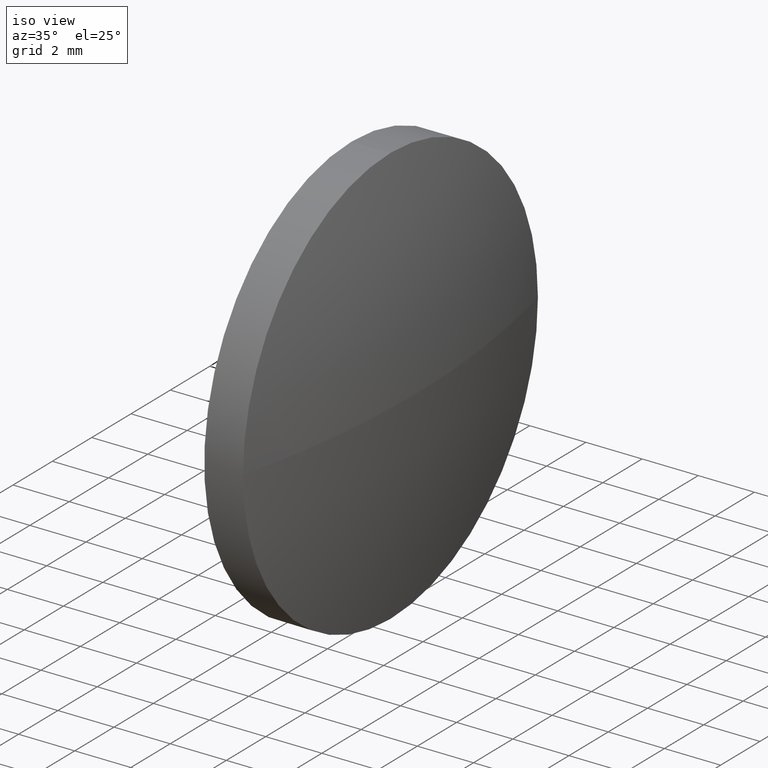
[diagram: clean part render]
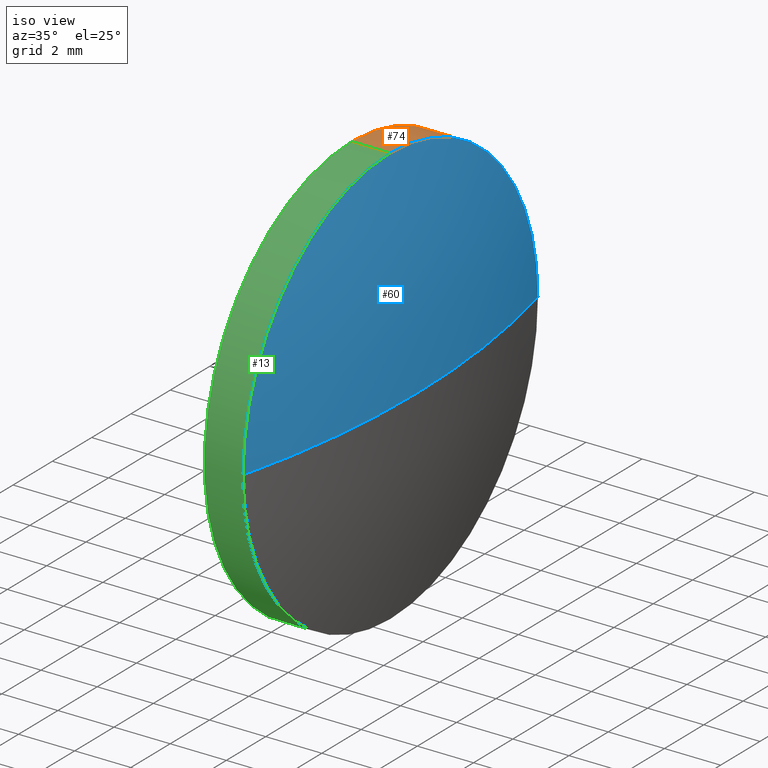
[diagram: same view with three faces highlighted in distinct colors, each labeled with its STEP entity id]
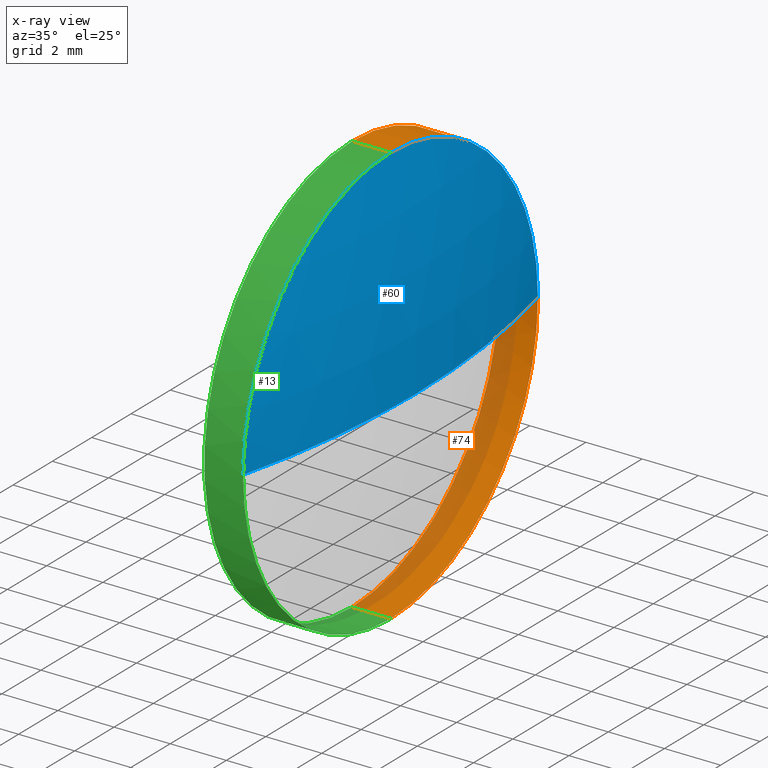
[diagram: x-ray of the same camera — body ghosted, the three highlighted faces saturated]
A machine part, iso view with three faces highlighted in distinct colors.
The next image is the same camera in x-ray (body ghosted, the three faces saturated) — at least one of them is partly hidden behind the body in this view.
Their STEP definitions:

[orange] entity #74 — the highlighted cylindrical surface (partial cylindrical patch) has radius 7.5 mm, axis along (-1, -0, -0).
#2 = CIRCLE ( 'NONE', #32, 7.500000000000007100 ) ;
#6 = CARTESIAN_POINT ( 'NONE',  ( 650.7168580883347900, 150.1803494272311400, -7.500000000000007100 ) ) ;
#7 = ORIENTED_EDGE ( 'NONE', *, *, #37, .T. ) ;
#8 = CARTESIAN_POINT ( 'NONE',  ( 650.7168580883347900, 150.1803494272311400, 7.500000000000007100 ) ) ;
#11 = EDGE_CURVE ( 'NONE', #154, #98, #133, .T. ) ;
#14 = DIRECTION ( 'NONE',  ( -1.000000000000000000, -0.0000000000000000000, -0.0000000000000000000 ) ) ;
#28 = DIRECTION ( 'NONE',  ( -1.000000000000000000, -0.0000000000000000000, -0.0000000000000000000 ) ) ;
#32 = AXIS2_PLACEMENT_3D ( 'NONE', #143, #40, #156 ) ;
#34 = VECTOR ( 'NONE', #137, 1000.000000000000000 ) ;
#37 = EDGE_CURVE ( 'NONE', #184, #57, #86, .T. ) ;
#38 = AXIS2_PLACEMENT_3D ( 'NONE', #79, #128, #113 ) ;
#40 = DIRECTION ( 'NONE',  ( -1.000000000000000000, -0.0000000000000000000, -0.0000000000000000000 ) ) ;
#43 = VERTEX_POINT ( 'NONE', #170 ) ;
#54 = EDGE_CURVE ( 'NONE', #43, #57, #127, .T. ) ;
#57 = VERTEX_POINT ( 'NONE', #140 ) ;
#59 = ORIENTED_EDGE ( 'NONE', *, *, #11, .T. ) ;
#62 = DIRECTION ( 'NONE',  ( 0.0000000000000000000, 0.0000000000000000000, 1.000000000000000000 ) ) ;
#69 = CARTESIAN_POINT ( 'NONE',  ( 644.7185011733270100, 150.1803494272311400, 7.500000000000007100 ) ) ;
#74 = ADVANCED_FACE ( 'NONE', ( #136 ), #75, .T. ) ;
#75 = CYLINDRICAL_SURFACE ( 'NONE', #38, 7.500000000000007100 ) ;
#78 = EDGE_CURVE ( 'NONE', #154, #43, #89, .T. ) ;
#79 = CARTESIAN_POINT ( 'NONE',  ( 644.7185011733270100, 150.1803494272311400, 0.0000000000000000000 ) ) ;
#80 = CARTESIAN_POINT ( 'NONE',  ( 650.7168580883347900, 157.6803494272311600, 0.0000000000000000000 ) ) ;
#81 = EDGE_LOOP ( 'NONE', ( #167, #7, #147, #88, #59 ) ) ;
#86 = LINE ( 'NONE', #183, #34 ) ;
#88 = ORIENTED_EDGE ( 'NONE', *, *, #78, .F. ) ;
#89 = LINE ( 'NONE', #69, #102 ) ;
#98 = VERTEX_POINT ( 'NONE', #80 ) ;
#99 = EDGE_CURVE ( 'NONE', #98, #184, #2, .T. ) ;
#102 = VECTOR ( 'NONE', #171, 1000.000000000000000 ) ;
#113 = DIRECTION ( 'NONE',  ( 0.0000000000000000000, 0.0000000000000000000, 1.000000000000000000 ) ) ;
#127 = CIRCLE ( 'NONE', #153, 7.500000000000007100 ) ;
#128 = DIRECTION ( 'NONE',  ( -1.000000000000000000, -0.0000000000000000000, -0.0000000000000000000 ) ) ;
#130 = AXIS2_PLACEMENT_3D ( 'NONE', #186, #14, #165 ) ;
#133 = CIRCLE ( 'NONE', #130, 7.500000000000007100 ) ;
#136 = FACE_OUTER_BOUND ( 'NONE', #81, .T. ) ;
#137 = DIRECTION ( 'NONE',  ( -1.000000000000000000, -0.0000000000000000000, -0.0000000000000000000 ) ) ;
#139 = CARTESIAN_POINT ( 'NONE',  ( 649.3368580883349100, 150.1803494272311400, 0.0000000000000000000 ) ) ;
#140 = CARTESIAN_POINT ( 'NONE',  ( 649.3368580883349100, 150.1803494272311400, -7.500000000000007100 ) ) ;
#143 = CARTESIAN_POINT ( 'NONE',  ( 650.7168580883347900, 150.1803494272311400, 0.0000000000000000000 ) ) ;
#147 = ORIENTED_EDGE ( 'NONE', *, *, #54, .F. ) ;
#153 = AXIS2_PLACEMENT_3D ( 'NONE', #139, #28, #62 ) ;
#154 = VERTEX_POINT ( 'NONE', #8 ) ;
#156 = DIRECTION ( 'NONE',  ( 0.0000000000000000000, 0.0000000000000000000, 1.000000000000000000 ) ) ;
#165 = DIRECTION ( 'NONE',  ( 0.0000000000000000000, 0.0000000000000000000, 1.000000000000000000 ) ) ;
#167 = ORIENTED_EDGE ( 'NONE', *, *, #99, .T. ) ;
#170 = CARTESIAN_POINT ( 'NONE',  ( 649.3368580883349100, 150.1803494272311400, 7.500000000000007100 ) ) ;
#171 = DIRECTION ( 'NONE',  ( -1.000000000000000000, -0.0000000000000000000, -0.0000000000000000000 ) ) ;
#183 = CARTESIAN_POINT ( 'NONE',  ( 644.7185011733270100, 150.1803494272311400, -7.500000000000007100 ) ) ;
#184 = VERTEX_POINT ( 'NONE', #6 ) ;
#186 = CARTESIAN_POINT ( 'NONE',  ( 650.7168580883347900, 150.1803494272311400, 0.0000000000000000000 ) ) ;

[blue] entity #60 — the highlighted spherical surface has radius 31.0307 mm.
#3 = DIRECTION ( 'NONE',  ( 0.0000000000000000000, 0.0000000000000000000, 1.000000000000000000 ) ) ;
#8 = CARTESIAN_POINT ( 'NONE',  ( 650.7168580883347900, 150.1803494272311400, 7.500000000000007100 ) ) ;
#11 = EDGE_CURVE ( 'NONE', #154, #98, #133, .T. ) ;
#14 = DIRECTION ( 'NONE',  ( -1.000000000000000000, -0.0000000000000000000, -0.0000000000000000000 ) ) ;
#26 = ORIENTED_EDGE ( 'NONE', *, *, #85, .F. ) ;
#31 = ORIENTED_EDGE ( 'NONE', *, *, #108, .F. ) ;
#35 = DIRECTION ( 'NONE',  ( 0.0000000000000000000, 1.000000000000000000, 0.0000000000000000000 ) ) ;
#36 = FACE_OUTER_BOUND ( 'NONE', #164, .T. ) ;
#41 = CARTESIAN_POINT ( 'NONE',  ( 620.6062059144215900, 150.1803494272310800, 0.0000000000000000000 ) ) ;
#45 = EDGE_CURVE ( 'NONE', #161, #98, #106, .T. ) ;
#51 = DIRECTION ( 'NONE',  ( 0.0000000000000000000, 1.224646799147353200E-016, -1.000000000000000000 ) ) ;
#53 = CARTESIAN_POINT ( 'NONE',  ( 620.6062059144215900, 150.1803494272310800, 0.0000000000000000000 ) ) ;
#60 = ADVANCED_FACE ( 'NONE', ( #36 ), #77, .T. ) ;
#63 = CARTESIAN_POINT ( 'NONE',  ( 650.7168580883347900, 142.6803494272310500, -9.184850993605189400E-016 ) ) ;
#64 = DIRECTION ( 'NONE',  ( -0.0000000000000000000, 0.0000000000000000000, -1.000000000000000000 ) ) ;
#68 = ORIENTED_EDGE ( 'NONE', *, *, #11, .F. ) ;
#76 = CIRCLE ( 'NONE', #134, 31.03065217391321100 ) ;
#77 = SPHERICAL_SURFACE ( 'NONE', #124, 31.03065217391320000 ) ;
#80 = CARTESIAN_POINT ( 'NONE',  ( 650.7168580883347900, 157.6803494272311600, 0.0000000000000000000 ) ) ;
#82 = DIRECTION ( 'NONE',  ( -1.000000000000000000, -0.0000000000000000000, -0.0000000000000000000 ) ) ;
#85 = EDGE_CURVE ( 'NONE', #161, #151, #76, .T. ) ;
#98 = VERTEX_POINT ( 'NONE', #80 ) ;
#106 = CIRCLE ( 'NONE', #168, 31.03065217391321100 ) ;
#108 = EDGE_CURVE ( 'NONE', #151, #154, #125, .T. ) ;
#109 = DIRECTION ( 'NONE',  ( -0.0000000000000000000, 0.0000000000000000000, 1.000000000000000000 ) ) ;
#110 = CARTESIAN_POINT ( 'NONE',  ( 651.6368580883348600, 150.1803494272310800, 0.0000000000000000000 ) ) ;
#121 = DIRECTION ( 'NONE',  ( 1.000000000000000000, 0.0000000000000000000, 0.0000000000000000000 ) ) ;
#124 = AXIS2_PLACEMENT_3D ( 'NONE', #41, #64, #35 ) ;
#125 = CIRCLE ( 'NONE', #149, 7.500000000000007100 ) ;
#126 = CARTESIAN_POINT ( 'NONE',  ( 650.7168580883347900, 150.1803494272311400, 0.0000000000000000000 ) ) ;
#130 = AXIS2_PLACEMENT_3D ( 'NONE', #186, #14, #165 ) ;
#133 = CIRCLE ( 'NONE', #130, 7.500000000000007100 ) ;
#134 = AXIS2_PLACEMENT_3D ( 'NONE', #53, #51, #173 ) ;
#141 = ORIENTED_EDGE ( 'NONE', *, *, #45, .T. ) ;
#149 = AXIS2_PLACEMENT_3D ( 'NONE', #126, #82, #3 ) ;
#151 = VERTEX_POINT ( 'NONE', #63 ) ;
#154 = VERTEX_POINT ( 'NONE', #8 ) ;
#161 = VERTEX_POINT ( 'NONE', #110 ) ;
#164 = EDGE_LOOP ( 'NONE', ( #26, #141, #68, #31 ) ) ;
#165 = DIRECTION ( 'NONE',  ( 0.0000000000000000000, 0.0000000000000000000, 1.000000000000000000 ) ) ;
#168 = AXIS2_PLACEMENT_3D ( 'NONE', #185, #109, #121 ) ;
#173 = DIRECTION ( 'NONE',  ( 0.0000000000000000000, 1.000000000000000000, 1.224646799147352700E-016 ) ) ;
#185 = CARTESIAN_POINT ( 'NONE',  ( 620.6062059144215900, 150.1803494272310800, 0.0000000000000000000 ) ) ;
#186 = CARTESIAN_POINT ( 'NONE',  ( 650.7168580883347900, 150.1803494272311400, 0.0000000000000000000 ) ) ;

[green] entity #13 — the highlighted cylindrical surface (partial cylindrical patch) has radius 7.5 mm, axis along (-1, -0, -0).
#1 = DIRECTION ( 'NONE',  ( -1.000000000000000000, -0.0000000000000000000, -0.0000000000000000000 ) ) ;
#3 = DIRECTION ( 'NONE',  ( 0.0000000000000000000, 0.0000000000000000000, 1.000000000000000000 ) ) ;
#4 = CARTESIAN_POINT ( 'NONE',  ( 649.3368580883349100, 150.1803494272311400, 0.0000000000000000000 ) ) ;
#6 = CARTESIAN_POINT ( 'NONE',  ( 650.7168580883347900, 150.1803494272311400, -7.500000000000007100 ) ) ;
#8 = CARTESIAN_POINT ( 'NONE',  ( 650.7168580883347900, 150.1803494272311400, 7.500000000000007100 ) ) ;
#10 = ORIENTED_EDGE ( 'NONE', *, *, #108, .T. ) ;
#13 = ADVANCED_FACE ( 'NONE', ( #72 ), #47, .T. ) ;
#21 = EDGE_CURVE ( 'NONE', #184, #151, #117, .T. ) ;
#24 = ORIENTED_EDGE ( 'NONE', *, *, #118, .F. ) ;
#34 = VECTOR ( 'NONE', #137, 1000.000000000000000 ) ;
#37 = EDGE_CURVE ( 'NONE', #184, #57, #86, .T. ) ;
#39 = ORIENTED_EDGE ( 'NONE', *, *, #21, .T. ) ;
#43 = VERTEX_POINT ( 'NONE', #170 ) ;
#46 = DIRECTION ( 'NONE',  ( -1.000000000000000000, -0.0000000000000000000, -0.0000000000000000000 ) ) ;
#47 = CYLINDRICAL_SURFACE ( 'NONE', #160, 7.500000000000007100 ) ;
#48 = DIRECTION ( 'NONE',  ( 0.0000000000000000000, 0.0000000000000000000, 1.000000000000000000 ) ) ;
#57 = VERTEX_POINT ( 'NONE', #140 ) ;
#63 = CARTESIAN_POINT ( 'NONE',  ( 650.7168580883347900, 142.6803494272310500, -9.184850993605189400E-016 ) ) ;
#69 = CARTESIAN_POINT ( 'NONE',  ( 644.7185011733270100, 150.1803494272311400, 7.500000000000007100 ) ) ;
#72 = FACE_OUTER_BOUND ( 'NONE', #95, .T. ) ;
#78 = EDGE_CURVE ( 'NONE', #154, #43, #89, .T. ) ;
#82 = DIRECTION ( 'NONE',  ( -1.000000000000000000, -0.0000000000000000000, -0.0000000000000000000 ) ) ;
#86 = LINE ( 'NONE', #183, #34 ) ;
#89 = LINE ( 'NONE', #69, #102 ) ;
#91 = CARTESIAN_POINT ( 'NONE',  ( 650.7168580883347900, 150.1803494272311400, 0.0000000000000000000 ) ) ;
#94 = AXIS2_PLACEMENT_3D ( 'NONE', #4, #148, #111 ) ;
#95 = EDGE_LOOP ( 'NONE', ( #174, #39, #10, #131, #24 ) ) ;
#102 = VECTOR ( 'NONE', #171, 1000.000000000000000 ) ;
#107 = CARTESIAN_POINT ( 'NONE',  ( 644.7185011733270100, 150.1803494272311400, 0.0000000000000000000 ) ) ;
#108 = EDGE_CURVE ( 'NONE', #151, #154, #125, .T. ) ;
#111 = DIRECTION ( 'NONE',  ( 0.0000000000000000000, 0.0000000000000000000, 1.000000000000000000 ) ) ;
#117 = CIRCLE ( 'NONE', #138, 7.500000000000007100 ) ;
#118 = EDGE_CURVE ( 'NONE', #57, #43, #150, .T. ) ;
#125 = CIRCLE ( 'NONE', #149, 7.500000000000007100 ) ;
#126 = CARTESIAN_POINT ( 'NONE',  ( 650.7168580883347900, 150.1803494272311400, 0.0000000000000000000 ) ) ;
#131 = ORIENTED_EDGE ( 'NONE', *, *, #78, .T. ) ;
#137 = DIRECTION ( 'NONE',  ( -1.000000000000000000, -0.0000000000000000000, -0.0000000000000000000 ) ) ;
#138 = AXIS2_PLACEMENT_3D ( 'NONE', #91, #46, #166 ) ;
#140 = CARTESIAN_POINT ( 'NONE',  ( 649.3368580883349100, 150.1803494272311400, -7.500000000000007100 ) ) ;
#148 = DIRECTION ( 'NONE',  ( -1.000000000000000000, -0.0000000000000000000, -0.0000000000000000000 ) ) ;
#149 = AXIS2_PLACEMENT_3D ( 'NONE', #126, #82, #3 ) ;
#150 = CIRCLE ( 'NONE', #94, 7.500000000000007100 ) ;
#151 = VERTEX_POINT ( 'NONE', #63 ) ;
#154 = VERTEX_POINT ( 'NONE', #8 ) ;
#160 = AXIS2_PLACEMENT_3D ( 'NONE', #107, #1, #48 ) ;
#166 = DIRECTION ( 'NONE',  ( 0.0000000000000000000, 0.0000000000000000000, 1.000000000000000000 ) ) ;
#170 = CARTESIAN_POINT ( 'NONE',  ( 649.3368580883349100, 150.1803494272311400, 7.500000000000007100 ) ) ;
#171 = DIRECTION ( 'NONE',  ( -1.000000000000000000, -0.0000000000000000000, -0.0000000000000000000 ) ) ;
#174 = ORIENTED_EDGE ( 'NONE', *, *, #37, .F. ) ;
#183 = CARTESIAN_POINT ( 'NONE',  ( 644.7185011733270100, 150.1803494272311400, -7.500000000000007100 ) ) ;
#184 = VERTEX_POINT ( 'NONE', #6 ) ;